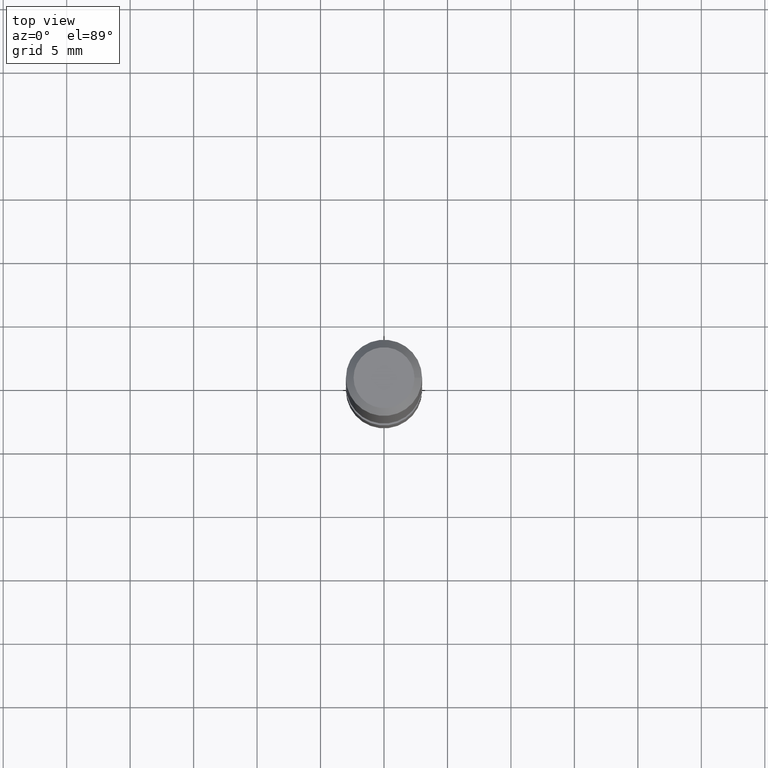
[diagram: clean part render]
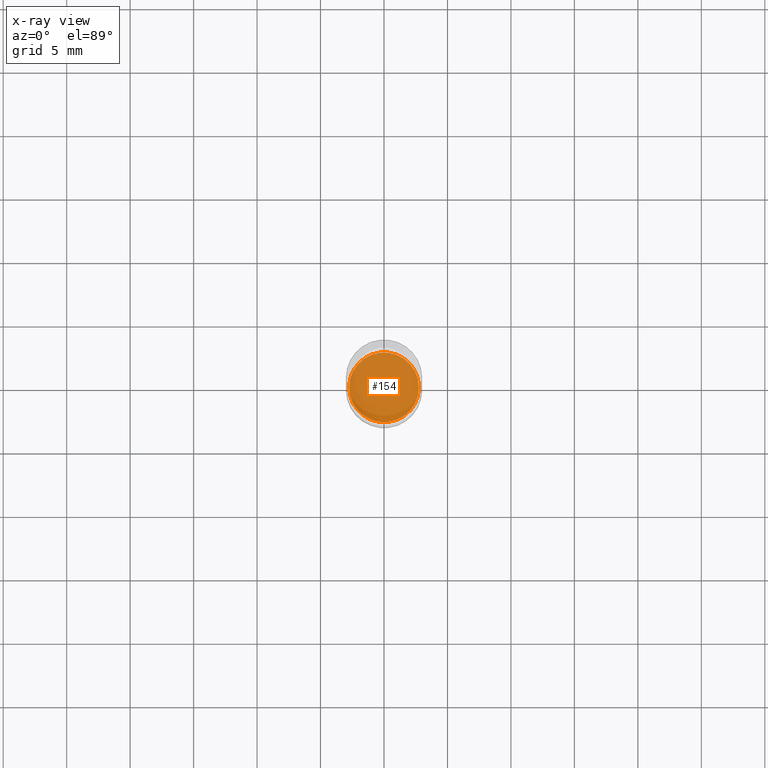
[diagram: x-ray — body ghosted, one internal face saturated and labeled with its STEP entity id]
A machine part, top view, then the same camera in x-ray: the body is ghosted and one INTERNAL B-rep face — a face not visible from any outside direction — is saturated and labeled: STEP entity #154.
In plain terms, the highlighted planar face has unit normal (-0, 0, -1).
Its self-contained STEP definition (entity closure, byte-faithful):
#4 = CIRCLE ( 'NONE', #278, 2.750000000000000000 ) ;
#22 = ORIENTED_EDGE ( 'NONE', *, *, #93, .T. ) ;
#25 = PLANE ( 'NONE',  #157 ) ;
#85 = DIRECTION ( 'NONE',  ( -6.982962677686266711E-15, 0.0000000000000000000, -1.000000000000000000 ) ) ;
#93 = EDGE_CURVE ( 'NONE', #133, #133, #4, .T. ) ;
#106 = CARTESIAN_POINT ( 'NONE',  ( -3.072503578181957858E-13, 0.0000000000000000000, -44.00000000000000711 ) ) ;
#107 = CARTESIAN_POINT ( 'NONE',  ( -2.750000000000306866, 0.0000000000000000000, -43.99999999999997868 ) ) ;
#133 = VERTEX_POINT ( 'NONE', #107 ) ;
#138 = DIRECTION ( 'NONE',  ( -1.000000000000000000, 0.0000000000000000000, 6.982962677686266711E-15 ) ) ;
#154 = ADVANCED_FACE ( 'NONE', ( #162 ), #25, .T. ) ;
#157 = AXIS2_PLACEMENT_3D ( 'NONE', #106, #231, #138 ) ;
#162 = FACE_OUTER_BOUND ( 'NONE', #205, .T. ) ;
#195 = DIRECTION ( 'NONE',  ( -1.000000000000000000, 0.0000000000000000000, 7.569702440626067895E-15 ) ) ;
#205 = EDGE_LOOP ( 'NONE', ( #22 ) ) ;
#216 = CARTESIAN_POINT ( 'NONE',  ( -3.072503578181957353E-13, 0.0000000000000000000, -44.00000000000000000 ) ) ;
#231 = DIRECTION ( 'NONE',  ( -6.982962677686266711E-15, 0.0000000000000000000, -1.000000000000000000 ) ) ;
#278 = AXIS2_PLACEMENT_3D ( 'NONE', #216, #85, #195 ) ;